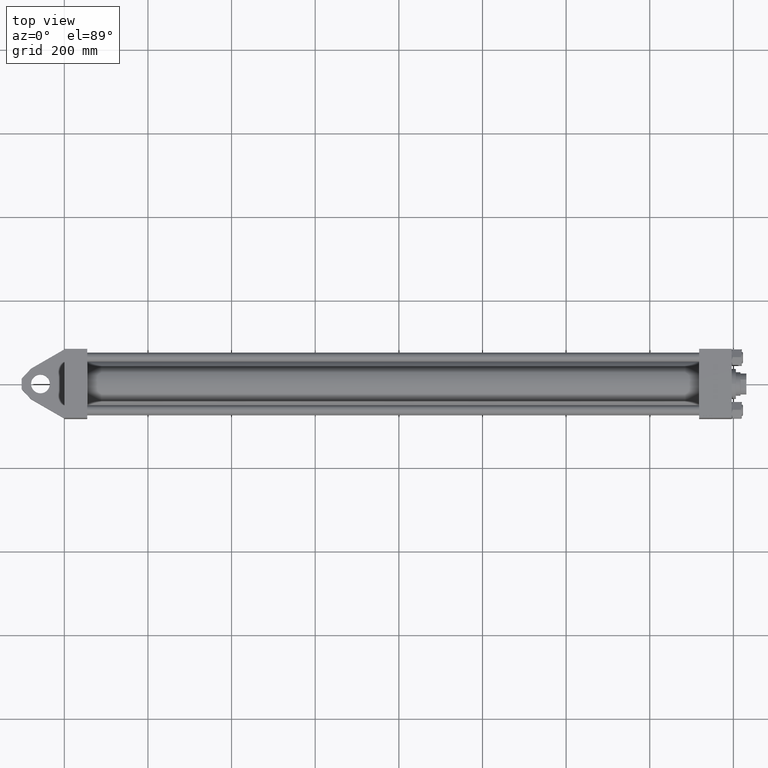
[diagram: clean part render]
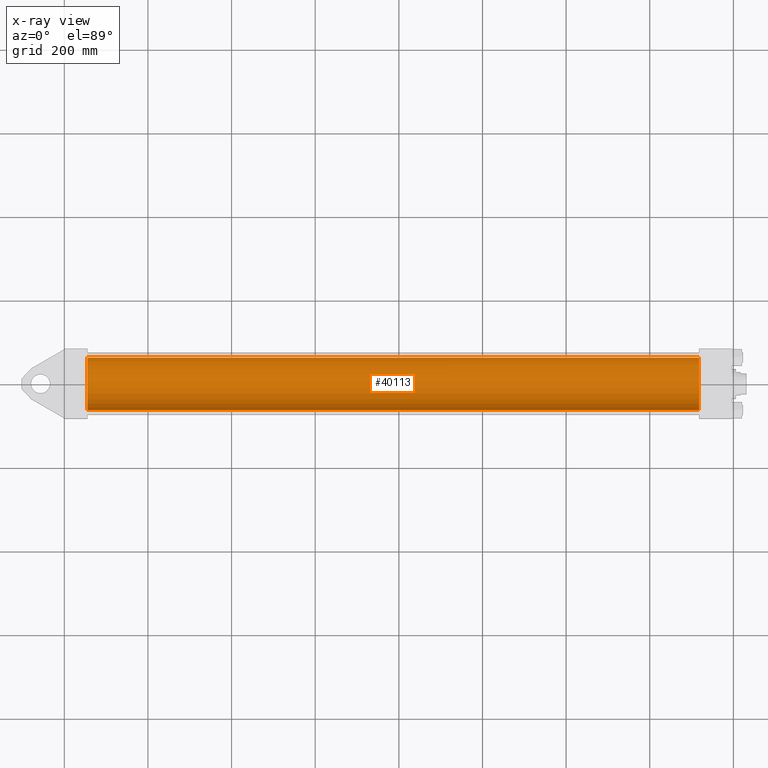
[diagram: x-ray — body ghosted, one internal face saturated and labeled with its STEP entity id]
A machine part, top view, then the same camera in x-ray: the body is ghosted and one INTERNAL B-rep face — a face not visible from any outside direction — is saturated and labeled: STEP entity #40113.
In plain terms, the highlighted cylindrical surface (edge-blend (fillet) strip) has radius 62.5 mm, axis along (-1, -0, 0).
Its self-contained STEP definition (entity closure, byte-faithful):
#1201 = EDGE_LOOP ( 'NONE', ( #19409, #21475, #33094, #37400 ) ) ;
#3176 = CIRCLE ( 'NONE', #37811, 62.50000000000000000 ) ;
#3303 = CARTESIAN_POINT ( 'NONE',  ( 55.00000000000000000, -2.602085213965210642E-15, 0.000000000000000000 ) ) ;
#3519 = DIRECTION ( 'NONE',  ( 0.000000000000000000, 0.000000000000000000, -1.000000000000000000 ) ) ;
#5597 = CARTESIAN_POINT ( 'NONE',  ( 1518.000000000000000, 5.051957280705747162E-15, -62.50000000000000000 ) ) ;
#6427 = CARTESIAN_POINT ( 'NONE',  ( 55.00000000000000000, -2.602085213965210642E-15, 62.50000000000000000 ) ) ;
#6620 = DIRECTION ( 'NONE',  ( 0.000000000000000000, 0.000000000000000000, -1.000000000000000000 ) ) ;
#9377 = CARTESIAN_POINT ( 'NONE',  ( 1518.000000000000000, -2.602085213965210642E-15, 62.50000000000000000 ) ) ;
#9824 = LINE ( 'NONE', #5597, #41755 ) ;
#9898 = VERTEX_POINT ( 'NONE', #9377 ) ;
#13023 = CYLINDRICAL_SURFACE ( 'NONE', #16861, 62.50000000000000000 ) ;
#13341 = EDGE_CURVE ( 'NONE', #9898, #23629, #3176, .T. ) ;
#13728 = EDGE_CURVE ( 'NONE', #9898, #32981, #32904, .T. ) ;
#16374 = EDGE_CURVE ( 'NONE', #32981, #43751, #31152, .T. ) ;
#16861 = AXIS2_PLACEMENT_3D ( 'NONE', #37792, #23391, #23159 ) ;
#17867 = CARTESIAN_POINT ( 'NONE',  ( 1518.000000000000000, -2.602085213965210642E-15, 0.000000000000000000 ) ) ;
#19409 = ORIENTED_EDGE ( 'NONE', *, *, #13341, .T. ) ;
#21475 = ORIENTED_EDGE ( 'NONE', *, *, #45824, .T. ) ;
#23159 = DIRECTION ( 'NONE',  ( 0.000000000000000000, 0.000000000000000000, 1.000000000000000000 ) ) ;
#23391 = DIRECTION ( 'NONE',  ( -1.000000000000000000, -0.000000000000000000, -0.000000000000000000 ) ) ;
#23629 = VERTEX_POINT ( 'NONE', #32667 ) ;
#23721 = DIRECTION ( 'NONE',  ( -1.000000000000000000, -0.000000000000000000, -0.000000000000000000 ) ) ;
#24491 = DIRECTION ( 'NONE',  ( 1.000000000000000000, 0.000000000000000000, 0.000000000000000000 ) ) ;
#26254 = CARTESIAN_POINT ( 'NONE',  ( 55.00000000000000000, 5.051957280705747162E-15, -62.50000000000000000 ) ) ;
#29367 = CARTESIAN_POINT ( 'NONE',  ( 1518.000000000000000, -2.602085213965210642E-15, 62.50000000000000000 ) ) ;
#30408 = AXIS2_PLACEMENT_3D ( 'NONE', #3303, #38895, #6620 ) ;
#31152 = CIRCLE ( 'NONE', #30408, 62.50000000000000000 ) ;
#32667 = CARTESIAN_POINT ( 'NONE',  ( 1518.000000000000000, 5.051957280705747162E-15, -62.50000000000000000 ) ) ;
#32904 = LINE ( 'NONE', #29367, #43049 ) ;
#32981 = VERTEX_POINT ( 'NONE', #6427 ) ;
#33094 = ORIENTED_EDGE ( 'NONE', *, *, #16374, .F. ) ;
#37400 = ORIENTED_EDGE ( 'NONE', *, *, #13728, .F. ) ;
#37792 = CARTESIAN_POINT ( 'NONE',  ( 1518.000000000000000, -2.602085213965210642E-15, 0.000000000000000000 ) ) ;
#37811 = AXIS2_PLACEMENT_3D ( 'NONE', #17867, #24491, #3519 ) ;
#38895 = DIRECTION ( 'NONE',  ( 1.000000000000000000, 0.000000000000000000, 0.000000000000000000 ) ) ;
#40113 = ADVANCED_FACE ( 'NONE', ( #45300 ), #13023, .F. ) ;
#40210 = DIRECTION ( 'NONE',  ( -1.000000000000000000, -0.000000000000000000, -0.000000000000000000 ) ) ;
#41755 = VECTOR ( 'NONE', #23721, 1000.000000000000000 ) ;
#43049 = VECTOR ( 'NONE', #40210, 1000.000000000000000 ) ;
#43751 = VERTEX_POINT ( 'NONE', #26254 ) ;
#45300 = FACE_OUTER_BOUND ( 'NONE', #1201, .T. ) ;
#45824 = EDGE_CURVE ( 'NONE', #23629, #43751, #9824, .T. ) ;